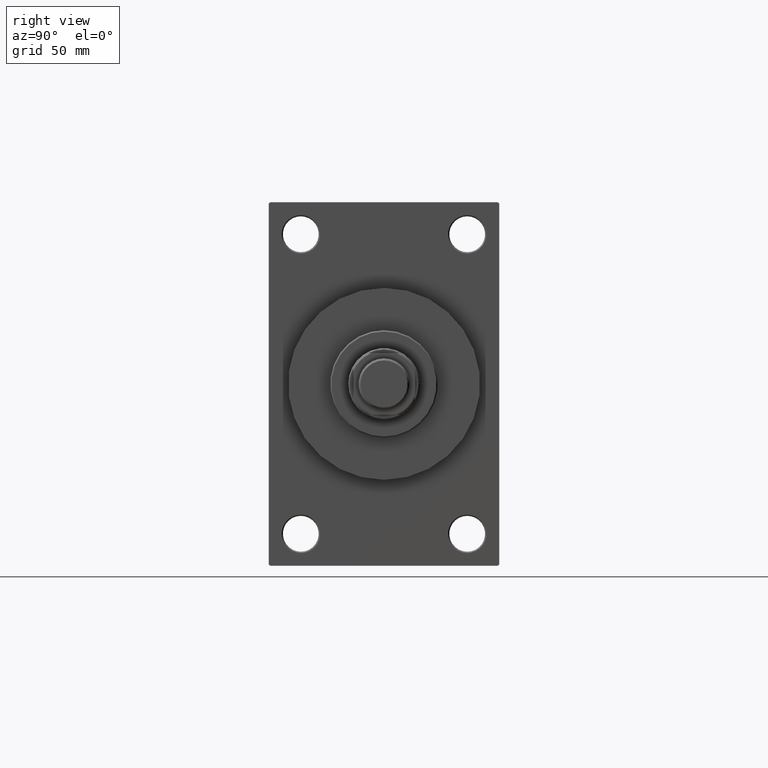
[diagram: clean part render]
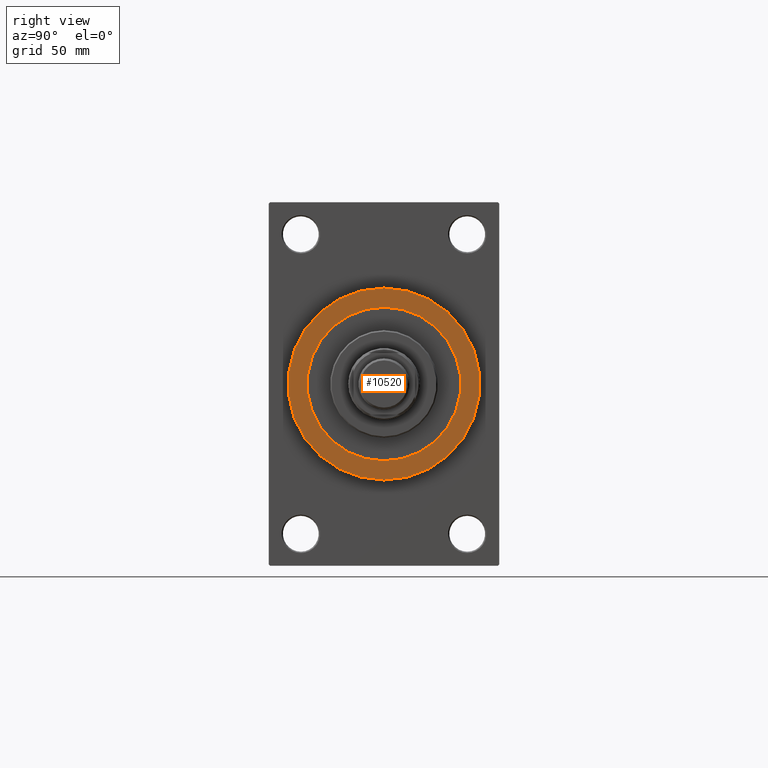
[diagram: same view with one face highlighted and labeled with its STEP entity id]
A machine part, right view. The second image highlights one B-rep face of the part: STEP entity #10520.
In plain terms, the highlighted planar face has unit normal (1, 0, 0).
Its self-contained STEP definition (entity closure, byte-faithful):
#901 = DIRECTION ( 'NONE',  ( 1.000000000000000000, 0.000000000000000000, 0.000000000000000000 ) ) ;
#1131 = DIRECTION ( 'NONE',  ( 0.000000000000000000, 0.000000000000000000, -1.000000000000000000 ) ) ;
#1491 = DIRECTION ( 'NONE',  ( 0.000000000000000000, 0.000000000000000000, -1.000000000000000000 ) ) ;
#2065 = PLANE ( 'NONE',  #13571 ) ;
#2622 = CARTESIAN_POINT ( 'NONE',  ( 156.0000000000000284, 0.000000000000000000, -30.00000000000000000 ) ) ;
#3955 = CARTESIAN_POINT ( 'NONE',  ( 156.0000000000000284, 0.000000000000000000, 0.000000000000000000 ) ) ;
#6049 = EDGE_LOOP ( 'NONE', ( #18018, #34716 ) ) ;
#6218 = CARTESIAN_POINT ( 'NONE',  ( 156.0000000000000284, 0.000000000000000000, 0.000000000000000000 ) ) ;
#6862 = ORIENTED_EDGE ( 'NONE', *, *, #34414, .F. ) ;
#8123 = CARTESIAN_POINT ( 'NONE',  ( 156.0000000000000284, 0.000000000000000000, 0.000000000000000000 ) ) ;
#8343 = FACE_BOUND ( 'NONE', #27706, .T. ) ;
#8779 = CARTESIAN_POINT ( 'NONE',  ( 156.0000000000000284, 0.000000000000000000, 37.50000000000000711 ) ) ;
#9766 = DIRECTION ( 'NONE',  ( 0.000000000000000000, 0.000000000000000000, -1.000000000000000000 ) ) ;
#10520 = ADVANCED_FACE ( 'NONE', ( #8343, #34129 ), #2065, .T. ) ;
#13414 = AXIS2_PLACEMENT_3D ( 'NONE', #32898, #37476, #47613 ) ;
#13571 = AXIS2_PLACEMENT_3D ( 'NONE', #17676, #46408, #9766 ) ;
#13744 = ORIENTED_EDGE ( 'NONE', *, *, #32700, .F. ) ;
#13817 = CARTESIAN_POINT ( 'NONE',  ( 156.0000000000000284, 3.673940397442059178E-15, 30.00000000000000000 ) ) ;
#14174 = AXIS2_PLACEMENT_3D ( 'NONE', #3955, #22014, #43244 ) ;
#17133 = EDGE_CURVE ( 'NONE', #43427, #36798, #44586, .T. ) ;
#17676 = CARTESIAN_POINT ( 'NONE',  ( 156.0000000000000284, 0.000000000000000000, 0.000000000000000000 ) ) ;
#18018 = ORIENTED_EDGE ( 'NONE', *, *, #34049, .T. ) ;
#20396 = AXIS2_PLACEMENT_3D ( 'NONE', #6218, #41734, #1491 ) ;
#21830 = CIRCLE ( 'NONE', #14174, 30.00000000000000000 ) ;
#22014 = DIRECTION ( 'NONE',  ( 1.000000000000000000, 0.000000000000000000, 0.000000000000000000 ) ) ;
#24909 = CARTESIAN_POINT ( 'NONE',  ( 156.0000000000000284, 4.592425496802575156E-15, -37.50000000000000711 ) ) ;
#25363 = VERTEX_POINT ( 'NONE', #13817 ) ;
#25717 = CIRCLE ( 'NONE', #13414, 37.50000000000000711 ) ;
#27706 = EDGE_LOOP ( 'NONE', ( #6862, #13744 ) ) ;
#29946 = AXIS2_PLACEMENT_3D ( 'NONE', #8123, #901, #1131 ) ;
#30747 = VERTEX_POINT ( 'NONE', #2622 ) ;
#32700 = EDGE_CURVE ( 'NONE', #25363, #30747, #21830, .T. ) ;
#32898 = CARTESIAN_POINT ( 'NONE',  ( 156.0000000000000284, 0.000000000000000000, 0.000000000000000000 ) ) ;
#34049 = EDGE_CURVE ( 'NONE', #36798, #43427, #25717, .T. ) ;
#34129 = FACE_OUTER_BOUND ( 'NONE', #6049, .T. ) ;
#34414 = EDGE_CURVE ( 'NONE', #30747, #25363, #42697, .T. ) ;
#34716 = ORIENTED_EDGE ( 'NONE', *, *, #17133, .T. ) ;
#36798 = VERTEX_POINT ( 'NONE', #8779 ) ;
#37476 = DIRECTION ( 'NONE',  ( 1.000000000000000000, 0.000000000000000000, 0.000000000000000000 ) ) ;
#41734 = DIRECTION ( 'NONE',  ( 1.000000000000000000, 0.000000000000000000, 0.000000000000000000 ) ) ;
#42697 = CIRCLE ( 'NONE', #20396, 30.00000000000000000 ) ;
#43244 = DIRECTION ( 'NONE',  ( 0.000000000000000000, 0.000000000000000000, -1.000000000000000000 ) ) ;
#43427 = VERTEX_POINT ( 'NONE', #24909 ) ;
#44586 = CIRCLE ( 'NONE', #29946, 37.50000000000000711 ) ;
#46408 = DIRECTION ( 'NONE',  ( 1.000000000000000000, 0.000000000000000000, 0.000000000000000000 ) ) ;
#47613 = DIRECTION ( 'NONE',  ( 0.000000000000000000, 0.000000000000000000, -1.000000000000000000 ) ) ;